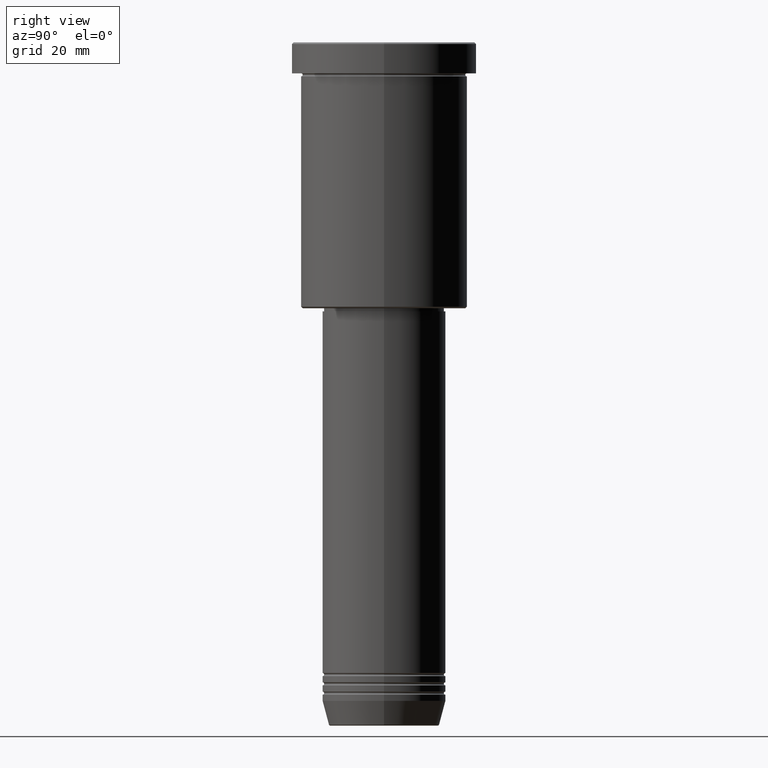
[diagram: clean part render]
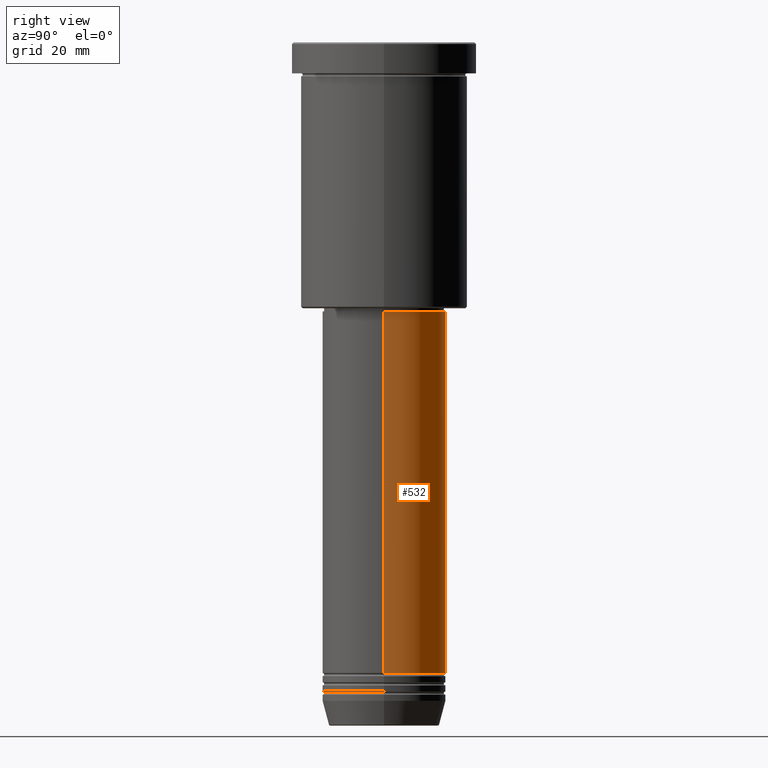
[diagram: same view with one face highlighted and labeled with its STEP entity id]
A machine part, right view. The second image highlights one B-rep face of the part: STEP entity #532.
In plain terms, the highlighted cylindrical surface (partial cylindrical patch) has radius 20 mm, axis along (-0, -0, 1).
Its self-contained STEP definition (entity closure, byte-faithful):
#53 = VECTOR ( 'NONE', #1153, 1000.000000000000000 ) ;
#61 = CARTESIAN_POINT ( 'NONE',  ( -20.00000000000000000, 2.449293598294706513E-15, 0.000000000000000000 ) ) ;
#83 = ORIENTED_EDGE ( 'NONE', *, *, #276, .F. ) ;
#99 = AXIS2_PLACEMENT_3D ( 'NONE', #250, #428, #639 ) ;
#109 = VERTEX_POINT ( 'NONE', #1132 ) ;
#191 = DIRECTION ( 'NONE',  ( 1.000000000000000000, 0.000000000000000000, 0.000000000000000000 ) ) ;
#213 = EDGE_CURVE ( 'NONE', #1171, #109, #651, .T. ) ;
#232 = DIRECTION ( 'NONE',  ( -0.000000000000000000, -0.000000000000000000, 1.000000000000000000 ) ) ;
#250 = CARTESIAN_POINT ( 'NONE',  ( 0.000000000000000000, 0.000000000000000000, 0.000000000000000000 ) ) ;
#276 = EDGE_CURVE ( 'NONE', #1044, #1171, #1063, .T. ) ;
#280 = CIRCLE ( 'NONE', #941, 20.00000000000000000 ) ;
#290 = DIRECTION ( 'NONE',  ( -0.000000000000000000, -0.000000000000000000, 1.000000000000000000 ) ) ;
#325 = ORIENTED_EDGE ( 'NONE', *, *, #213, .F. ) ;
#339 = FACE_OUTER_BOUND ( 'NONE', #555, .T. ) ;
#344 = EDGE_CURVE ( 'NONE', #500, #109, #979, .T. ) ;
#369 = CARTESIAN_POINT ( 'NONE',  ( 20.00000000000000000, 0.000000000000000000, -87.00000000000000000 ) ) ;
#391 = ORIENTED_EDGE ( 'NONE', *, *, #722, .T. ) ;
#428 = DIRECTION ( 'NONE',  ( -0.000000000000000000, -0.000000000000000000, 1.000000000000000000 ) ) ;
#433 = CYLINDRICAL_SURFACE ( 'NONE', #99, 20.00000000000000000 ) ;
#457 = CARTESIAN_POINT ( 'NONE',  ( 20.00000000000000000, 0.000000000000000000, 0.000000000000000000 ) ) ;
#500 = VERTEX_POINT ( 'NONE', #1056 ) ;
#532 = ADVANCED_FACE ( 'NONE', ( #339 ), #433, .T. ) ;
#555 = EDGE_LOOP ( 'NONE', ( #391, #601, #325, #83 ) ) ;
#582 = CARTESIAN_POINT ( 'NONE',  ( 0.000000000000000000, 0.000000000000000000, -87.00000000000000000 ) ) ;
#589 = AXIS2_PLACEMENT_3D ( 'NONE', #582, #232, #962 ) ;
#601 = ORIENTED_EDGE ( 'NONE', *, *, #344, .T. ) ;
#639 = DIRECTION ( 'NONE',  ( 1.000000000000000000, 0.000000000000000000, 0.000000000000000000 ) ) ;
#651 = CIRCLE ( 'NONE', #589, 20.00000000000000000 ) ;
#697 = CARTESIAN_POINT ( 'NONE',  ( 20.00000000000000000, 0.000000000000000000, -203.9999999999999716 ) ) ;
#722 = EDGE_CURVE ( 'NONE', #1044, #500, #280, .T. ) ;
#751 = CARTESIAN_POINT ( 'NONE',  ( 0.000000000000000000, 0.000000000000000000, -203.9999999999999716 ) ) ;
#894 = VECTOR ( 'NONE', #969, 1000.000000000000000 ) ;
#941 = AXIS2_PLACEMENT_3D ( 'NONE', #751, #290, #191 ) ;
#962 = DIRECTION ( 'NONE',  ( 1.000000000000000000, 0.000000000000000000, 0.000000000000000000 ) ) ;
#969 = DIRECTION ( 'NONE',  ( -0.000000000000000000, -0.000000000000000000, 1.000000000000000000 ) ) ;
#979 = LINE ( 'NONE', #61, #53 ) ;
#1044 = VERTEX_POINT ( 'NONE', #697 ) ;
#1056 = CARTESIAN_POINT ( 'NONE',  ( -20.00000000000000000, 2.449293598294706513E-15, -203.9999999999999716 ) ) ;
#1063 = LINE ( 'NONE', #457, #894 ) ;
#1132 = CARTESIAN_POINT ( 'NONE',  ( -20.00000000000000000, 2.449293598294706513E-15, -87.00000000000000000 ) ) ;
#1153 = DIRECTION ( 'NONE',  ( -0.000000000000000000, -0.000000000000000000, 1.000000000000000000 ) ) ;
#1171 = VERTEX_POINT ( 'NONE', #369 ) ;